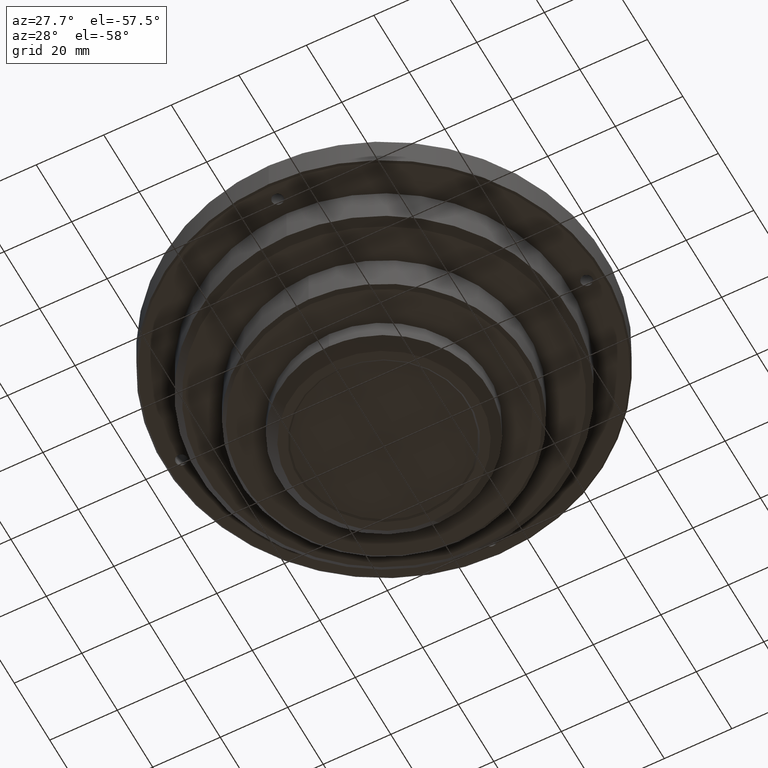
[diagram: clean part render]
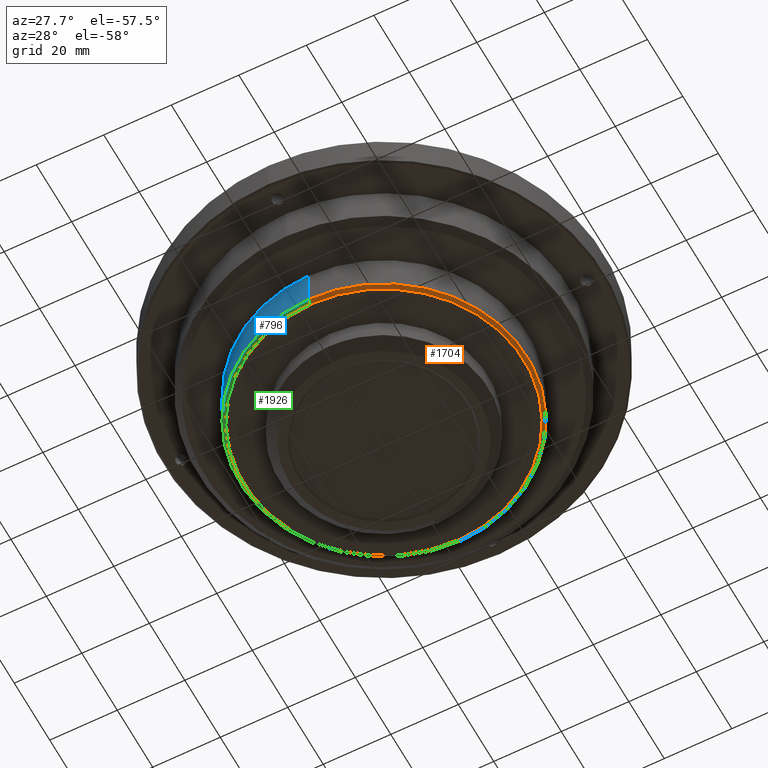
[diagram: same view with three faces highlighted in distinct colors, each labeled with its STEP entity id]
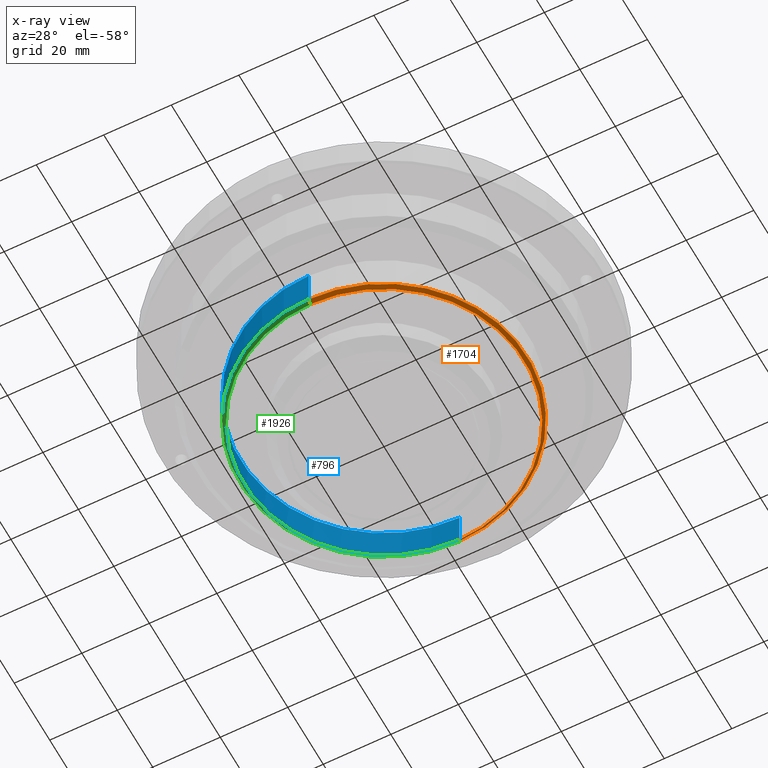
[diagram: x-ray of the same camera — body ghosted, the three highlighted faces saturated]
A machine part, auxiliary view with three faces highlighted in distinct colors.
The next image is the same camera in x-ray (body ghosted, the three faces saturated) — at least one of them is partly hidden behind the body in this view.
Their STEP definitions:

[orange] entity #1704 — the highlighted conical surface has half-angle 45 deg.
#1 = CARTESIAN_POINT ( 'NONE',  ( 41.14071750211581247, -11.01951182217534964, 29.99998973827607074 ) ) ;
#104 = VECTOR ( 'NONE', #173, 999.9999999999998863 ) ;
#134 = CARTESIAN_POINT ( 'NONE',  ( 32.01894723179170654, -28.08514368052436794, 29.99998973827607074 ) ) ;
#172 = CARTESIAN_POINT ( 'NONE',  ( 33.79208224593575949, 25.92457241444637361, 29.99998973827607429 ) ) ;
#173 = DIRECTION ( 'NONE',  ( 0.000000000000000000, -0.7071033239402958470, 0.7071102384158958198 ) ) ;
#207 = CARTESIAN_POINT ( 'NONE',  ( 0.000000000000000000, 42.50000513042999728, 29.99999486899999823 ) ) ;
#210 = VERTEX_POINT ( 'NONE', #550 ) ;
#231 = EDGE_CURVE ( 'NONE', #2260, #747, #530, .T. ) ;
#281 = CARTESIAN_POINT ( 'NONE',  ( 13.69416878669637860, 40.32936918214107180, 29.99998973827606363 ) ) ;
#324 = CARTESIAN_POINT ( 'NONE',  ( 5.563169552898205694, -42.22605146013142274, 29.99998973827606719 ) ) ;
#338 = CARTESIAN_POINT ( 'NONE',  ( 13.69416878669661664, -40.32936918214100075, 29.99998973827606719 ) ) ;
#360 = CARTESIAN_POINT ( 'NONE',  ( 42.22605146013139432, 5.563169552898257209, 29.99998973827606719 ) ) ;
#394 = EDGE_CURVE ( 'NONE', #747, #210, #2268, .T. ) ;
#397 = CARTESIAN_POINT ( 'NONE',  ( 0.000000000000000000, 41.50001001942999324, 28.99998997944999601 ) ) ;
#438 = CONICAL_SURFACE ( 'NONE', #1165, 42.00001014015000322, 0.7853984048428334086 ) ;
#484 = CARTESIAN_POINT ( 'NONE',  ( 18.83393081788149814, -38.20041004145392094, 29.99998973827607074 ) ) ;
#497 = CARTESIAN_POINT ( 'NONE',  ( 21.29890879380037205, 36.88285186345184741, 29.99998973827606363 ) ) ;
#530 = CIRCLE ( 'NONE', #1910, 41.50001001942999324 ) ;
#550 = CARTESIAN_POINT ( 'NONE',  ( 0.000000000000000000, -42.50000513042999728, 29.99999486899999823 ) ) ;
#656 = ORIENTED_EDGE ( 'NONE', *, *, #231, .F. ) ;
#673 = CARTESIAN_POINT ( 'NONE',  ( 0.000000000000000000, -41.50001001942999324, 28.99998997944999601 ) ) ;
#682 = CARTESIAN_POINT ( 'NONE',  ( 21.29890879380063495, -36.88285186345167688, 29.99998973827607074 ) ) ;
#723 = ORIENTED_EDGE ( 'NONE', *, *, #1201, .T. ) ;
#747 = VERTEX_POINT ( 'NONE', #1322 ) ;
#756 = CARTESIAN_POINT ( 'NONE',  ( 0.000000000000000000, 0.000000000000000000, 29.49998985872000290 ) ) ;
#768 = FACE_OUTER_BOUND ( 'NONE', #1321, .T. ) ;
#813 = DIRECTION ( 'NONE',  ( 0.000000000000000000, 0.000000000000000000, -1.000000000000000000 ) ) ;
#829 = CARTESIAN_POINT ( 'NONE',  ( 33.79208224593590160, -25.92457241444616756, 29.99998973827606719 ) ) ;
#851 = CARTESIAN_POINT ( 'NONE',  ( 28.08514368052452070, -32.01894723179157864, 29.99998973827607074 ) ) ;
#864 = CARTESIAN_POINT ( 'NONE',  ( 41.14071750211574141, 11.01951182217562319, 29.99998973827607074 ) ) ;
#873 = CARTESIAN_POINT ( 'NONE',  ( 38.20041004145389252, 18.83393081788156920, 29.99998973827607074 ) ) ;
#982 = CARTESIAN_POINT ( 'NONE',  ( 18.83393081788126366, 38.20041004145402752, 29.99998973827606363 ) ) ;
#1015 = CARTESIAN_POINT ( 'NONE',  ( 2.781619166956845746, -42.50001026115143787, 29.99998973827607429 ) ) ;
#1039 = CARTESIAN_POINT ( 'NONE',  ( 0.000000000000000000, -42.50000513042999728, 29.99999486899999823 ) ) ;
#1049 = CARTESIAN_POINT ( 'NONE',  ( 40.32936918214096522, 13.69416878669667703, 29.99998973827606719 ) ) ;
#1095 = DIRECTION ( 'NONE',  ( 0.000000000000000000, 1.000000000000000000, 0.000000000000000000 ) ) ;
#1149 = CARTESIAN_POINT ( 'NONE',  ( 0.000000000000000000, 0.000000000000000000, 28.99998997944999601 ) ) ;
#1165 = AXIS2_PLACEMENT_3D ( 'NONE', #756, #1285, #1095 ) ;
#1178 = CARTESIAN_POINT ( 'NONE',  ( 36.88285186345169109, 21.29890879380065982, 29.99998973827607429 ) ) ;
#1201 = EDGE_CURVE ( 'NONE', #2154, #210, #1682, .T. ) ;
#1208 = CARTESIAN_POINT ( 'NONE',  ( 36.88285186345180477, -21.29890879380043245, 29.99998973827606363 ) ) ;
#1285 = DIRECTION ( 'NONE',  ( 0.000000000000000000, 0.000000000000000000, 1.000000000000000000 ) ) ;
#1321 = EDGE_LOOP ( 'NONE', ( #723, #2089, #656, #2042 ) ) ;
#1322 = CARTESIAN_POINT ( 'NONE',  ( 0.000000000000000000, -41.50001001942999324, 28.99998997944999601 ) ) ;
#1326 = CARTESIAN_POINT ( 'NONE',  ( 0.000000000000000000, 41.50001001942999324, 28.99998997944999601 ) ) ;
#1330 = CARTESIAN_POINT ( 'NONE',  ( 2.781619166956577072, 42.50001026115145919, 29.99998973827607429 ) ) ;
#1376 = VECTOR ( 'NONE', #2205, 999.9999999999998863 ) ;
#1402 = CARTESIAN_POINT ( 'NONE',  ( 42.50001026115146630, -2.781619166956612599, 29.99998973827607074 ) ) ;
#1441 = EDGE_CURVE ( 'NONE', #2260, #2154, #2217, .T. ) ;
#1500 = CARTESIAN_POINT ( 'NONE',  ( 0.000000000000000000, 42.50000513042999728, 29.99999486899999823 ) ) ;
#1555 = CARTESIAN_POINT ( 'NONE',  ( 42.22605146013144406, -5.563169552897978321, 29.99998973827607074 ) ) ;
#1580 = CARTESIAN_POINT ( 'NONE',  ( 42.50001026115143077, 2.781619166956901701, 29.99998973827606719 ) ) ;
#1682 = B_SPLINE_CURVE_WITH_KNOTS ( 'NONE', 3,
 ( #1500, #1330, #2050, #1876, #281, #982, #497, #1774, #2121, #1726, #172, #1178, #873, #1049, #864, #360, #1580, #1402, #1555, #1, #2081, #1906, #1208, #829, #134, #851, #1931, #682, #484, #338, #1952, #324, #1015, #1039 ),
 .UNSPECIFIED., .F., .F.,
 ( 4, 2, 2, 2, 2, 2, 2, 2, 2, 2, 2, 2, 2, 2, 2, 2, 4 ),
 ( 0.000000000000000000, 0.06249999999999994449, 0.1249999999999998751, 0.1874999999999998057, 0.2499999999999997224, 0.3124999999999997224, 0.3749999999999997780, 0.4374999999999998335, 0.4999999999999998890, 0.5624999999999998890, 0.6250000000000000000, 0.6874999999999998890, 0.7499999999999998890, 0.8124999999999998890, 0.8750000000000000000, 0.9375000000000000000, 1.000000000000000000 ),
 .UNSPECIFIED. ) ;
#1704 = ADVANCED_FACE ( 'NONE', ( #768 ), #438, .T. ) ;
#1726 = CARTESIAN_POINT ( 'NONE',  ( 32.01894723179154312, 28.08514368052458465, 29.99998973827607074 ) ) ;
#1774 = CARTESIAN_POINT ( 'NONE',  ( 25.92457241444611071, 33.79208224593595133, 29.99998973827607429 ) ) ;
#1864 = DIRECTION ( 'NONE',  ( 0.000000000000000000, 1.000000000000000000, 0.000000000000000000 ) ) ;
#1876 = CARTESIAN_POINT ( 'NONE',  ( 11.01951182217530878, 41.14071750211579825, 29.99998973827606363 ) ) ;
#1906 = CARTESIAN_POINT ( 'NONE',  ( 38.20041004145401331, -18.83393081788129209, 29.99998973827606719 ) ) ;
#1910 = AXIS2_PLACEMENT_3D ( 'NONE', #1149, #813, #1864 ) ;
#1931 = CARTESIAN_POINT ( 'NONE',  ( 25.92457241444635230, -33.79208224593577370, 29.99998973827607074 ) ) ;
#1952 = CARTESIAN_POINT ( 'NONE',  ( 11.01951182217557168, -41.14071750211574852, 29.99998973827606719 ) ) ;
#2042 = ORIENTED_EDGE ( 'NONE', *, *, #1441, .T. ) ;
#2050 = CARTESIAN_POINT ( 'NONE',  ( 5.563169552897941017, 42.22605146013144406, 29.99998973827607074 ) ) ;
#2081 = CARTESIAN_POINT ( 'NONE',  ( 40.32936918214108601, -13.69416878669641235, 29.99998973827607429 ) ) ;
#2089 = ORIENTED_EDGE ( 'NONE', *, *, #394, .F. ) ;
#2121 = CARTESIAN_POINT ( 'NONE',  ( 28.08514368052430754, 32.01894723179176339, 29.99998973827607429 ) ) ;
#2154 = VERTEX_POINT ( 'NONE', #207 ) ;
#2205 = DIRECTION ( 'NONE',  ( 0.000000000000000000, 0.7071033239402958470, 0.7071102384158958198 ) ) ;
#2217 = LINE ( 'NONE', #1326, #1376 ) ;
#2260 = VERTEX_POINT ( 'NONE', #397 ) ;
#2268 = LINE ( 'NONE', #673, #104 ) ;

[blue] entity #796 — the highlighted cylindrical surface (partial cylindrical patch) has radius 42.5 mm, axis along (0, 0, -1).
#4 = ORIENTED_EDGE ( 'NONE', *, *, #1480, .F. ) ;
#15 = EDGE_LOOP ( 'NONE', ( #1928, #393, #4, #1170 ) ) ;
#74 = CARTESIAN_POINT ( 'NONE',  ( -13.69416548039279036, 40.32935944506657933, 29.99999486899999468 ) ) ;
#105 = CARTESIAN_POINT ( 'NONE',  ( -41.14070756915031524, 11.01950916163782068, 29.99999486899999823 ) ) ;
#128 = CARTESIAN_POINT ( 'NONE',  ( 0.000000000000000000, -42.50000513042999728, 29.99999486899999823 ) ) ;
#199 = VERTEX_POINT ( 'NONE', #1438 ) ;
#207 = CARTESIAN_POINT ( 'NONE',  ( 0.000000000000000000, 42.50000513042999728, 29.99999486899999823 ) ) ;
#210 = VERTEX_POINT ( 'NONE', #550 ) ;
#266 = CARTESIAN_POINT ( 'NONE',  ( -11.01950916163777450, -41.14070756915033655, 29.99999486899999823 ) ) ;
#293 = CARTESIAN_POINT ( 'NONE',  ( -40.32935944506655090, 13.69416548039291470, 29.99999486900000178 ) ) ;
#378 = EDGE_CURVE ( 'NONE', #2154, #1003, #662, .T. ) ;
#393 = ORIENTED_EDGE ( 'NONE', *, *, #2010, .T. ) ;
#434 = CARTESIAN_POINT ( 'NONE',  ( -11.01950916163768923, 41.14070756915035076, 29.99999486899999113 ) ) ;
#446 = CARTESIAN_POINT ( 'NONE',  ( -33.79207408721608630, -25.92456615524860908, 29.99999486899999823 ) ) ;
#457 = CARTESIAN_POINT ( 'NONE',  ( -38.20040081839285762, -18.83392627063975056, 29.99999486899999823 ) ) ;
#459 = CYLINDRICAL_SURFACE ( 'NONE', #2172, 42.50000000000000000 ) ;
#466 = CARTESIAN_POINT ( 'NONE',  ( -18.83392627063970437, 38.20040081839285762, 29.99999486899999468 ) ) ;
#468 = CARTESIAN_POINT ( 'NONE',  ( 0.000000000000000000, 0.000000000000000000, 79.27499999999999147 ) ) ;
#491 = LINE ( 'NONE', #128, #775 ) ;
#509 = CARTESIAN_POINT ( 'NONE',  ( 0.000000000000000000, 42.50000513042999728, 29.99999486899999823 ) ) ;
#550 = CARTESIAN_POINT ( 'NONE',  ( 0.000000000000000000, -42.50000513042999728, 29.99999486899999823 ) ) ;
#609 = CARTESIAN_POINT ( 'NONE',  ( -2.781618495365875798, 42.49999999999999289, 29.99999486899999468 ) ) ;
#621 = CARTESIAN_POINT ( 'NONE',  ( -5.563168209733053260, 42.22604126512427314, 29.99999486899999823 ) ) ;
#632 = CARTESIAN_POINT ( 'NONE',  ( -41.14070756915035076, -11.01950916163773897, 29.99999486899999823 ) ) ;
#643 = CARTESIAN_POINT ( 'NONE',  ( 0.000000000000000000, -42.50000513042999728, 29.99999486899999823 ) ) ;
#662 = LINE ( 'NONE', #509, #2296 ) ;
#775 = VECTOR ( 'NONE', #2258, 1000.000000000000227 ) ;
#778 = CARTESIAN_POINT ( 'NONE',  ( -2.781618495365970833, -42.50000000000002132, 29.99999486900001600 ) ) ;
#791 = CARTESIAN_POINT ( 'NONE',  ( -21.29890365141758579, -36.88284295850026950, 29.99999486900000178 ) ) ;
#796 = ADVANCED_FACE ( 'NONE', ( #2226 ), #459, .T. ) ;
#959 = CARTESIAN_POINT ( 'NONE',  ( -42.50000000000002132, -2.781618495365925536, 29.99999486899999823 ) ) ;
#983 = CARTESIAN_POINT ( 'NONE',  ( -25.92456615524855934, 33.79207408721612182, 29.99999486899999468 ) ) ;
#1003 = VERTEX_POINT ( 'NONE', #2026 ) ;
#1116 = CARTESIAN_POINT ( 'NONE',  ( -28.08513689968102156, 32.01893950117551668, 29.99999486899999823 ) ) ;
#1122 = CARTESIAN_POINT ( 'NONE',  ( 0.000000000000000000, 0.000000000000000000, 41.49999658835000105 ) ) ;
#1148 = CARTESIAN_POINT ( 'NONE',  ( -28.08513689968109617, -32.01893950117544563, 29.99999486899999468 ) ) ;
#1152 = DIRECTION ( 'NONE',  ( 0.000000000000000000, 0.000000000000000000, -1.000000000000000000 ) ) ;
#1160 = CARTESIAN_POINT ( 'NONE',  ( -18.83392627063978608, -38.20040081839282209, 29.99999486899999823 ) ) ;
#1163 = DIRECTION ( 'NONE',  ( 0.000000000000000000, -1.000000000000000000, 0.000000000000000000 ) ) ;
#1170 = ORIENTED_EDGE ( 'NONE', *, *, #378, .F. ) ;
#1295 = CARTESIAN_POINT ( 'NONE',  ( -36.88284295850029793, -21.29890365141755026, 29.99999486900000534 ) ) ;
#1331 = CARTESIAN_POINT ( 'NONE',  ( -36.88284295850024819, 21.29890365141761777, 29.99999486899999468 ) ) ;
#1393 = DIRECTION ( 'NONE',  ( 0.000000000000000000, -4.461245354495007050E-07, 0.9999999999999004130 ) ) ;
#1438 = CARTESIAN_POINT ( 'NONE',  ( 0.000000000000000000, -42.50000000000000000, 41.49999658835000105 ) ) ;
#1467 = B_SPLINE_CURVE_WITH_KNOTS ( 'NONE', 3,
 ( #1686, #609, #621, #434, #74, #466, #2060, #983, #1116, #1697, #1660, #1331, #1476, #293, #105, #1501, #1514, #959, #2223, #632, #2233, #457, #1295, #446, #2027, #1148, #1672, #791, #1160, #2016, #266, #1490, #778, #643 ),
 .UNSPECIFIED., .F., .F.,
 ( 4, 2, 2, 2, 2, 2, 2, 2, 2, 2, 2, 2, 2, 2, 2, 2, 4 ),
 ( 0.000000000000000000, 0.06250000000000008327, 0.1250000000000001388, 0.1875000000000002220, 0.2500000000000002776, 0.3125000000000002776, 0.3750000000000003331, 0.4375000000000003331, 0.5000000000000003331, 0.5625000000000004441, 0.6250000000000004441, 0.6875000000000005551, 0.7500000000000006661, 0.8125000000000005551, 0.8750000000000003331, 0.9375000000000002220, 1.000000000000000000 ),
 .UNSPECIFIED. ) ;
#1476 = CARTESIAN_POINT ( 'NONE',  ( -38.20040081839280077, 18.83392627063982872, 29.99999486899999468 ) ) ;
#1480 = EDGE_CURVE ( 'NONE', #1003, #199, #1942, .T. ) ;
#1490 = CARTESIAN_POINT ( 'NONE',  ( -5.563168209733133196, -42.22604126512426603, 29.99999486900000889 ) ) ;
#1501 = CARTESIAN_POINT ( 'NONE',  ( -42.22604126512424472, 5.563168209733186487, 29.99999486900000178 ) ) ;
#1509 = DIRECTION ( 'NONE',  ( 0.000000000000000000, 0.000000000000000000, 1.000000000000000000 ) ) ;
#1514 = CARTESIAN_POINT ( 'NONE',  ( -42.50000000000000000, 2.781618495366009469, 29.99999486899999823 ) ) ;
#1660 = CARTESIAN_POINT ( 'NONE',  ( -33.79207408721603656, 25.92456615524867303, 29.99999486899999823 ) ) ;
#1672 = CARTESIAN_POINT ( 'NONE',  ( -25.92456615524863395, -33.79207408721605788, 29.99999486899999113 ) ) ;
#1677 = AXIS2_PLACEMENT_3D ( 'NONE', #1122, #1509, #2230 ) ;
#1686 = CARTESIAN_POINT ( 'NONE',  ( 0.000000000000000000, 42.50000513042999728, 29.99999486899999823 ) ) ;
#1697 = CARTESIAN_POINT ( 'NONE',  ( -32.01893950117543142, 28.08513689968113525, 29.99999486900000178 ) ) ;
#1822 = EDGE_CURVE ( 'NONE', #2154, #210, #1467, .T. ) ;
#1928 = ORIENTED_EDGE ( 'NONE', *, *, #1822, .T. ) ;
#1942 = CIRCLE ( 'NONE', #1677, 42.50000000000000000 ) ;
#2010 = EDGE_CURVE ( 'NONE', #210, #199, #491, .T. ) ;
#2016 = CARTESIAN_POINT ( 'NONE',  ( -13.69416548039287740, -40.32935944506654380, 29.99999486899999468 ) ) ;
#2026 = CARTESIAN_POINT ( 'NONE',  ( 0.000000000000000000, 42.50000000000000000, 41.49999658835000105 ) ) ;
#2027 = CARTESIAN_POINT ( 'NONE',  ( -32.01893950117549537, -28.08513689968105709, 29.99999486899999823 ) ) ;
#2060 = CARTESIAN_POINT ( 'NONE',  ( -21.29890365141750408, 36.88284295850033345, 29.99999486900000534 ) ) ;
#2154 = VERTEX_POINT ( 'NONE', #207 ) ;
#2172 = AXIS2_PLACEMENT_3D ( 'NONE', #468, #1152, #1163 ) ;
#2223 = CARTESIAN_POINT ( 'NONE',  ( -42.22604126512427314, -5.563168209733093228, 29.99999486900000178 ) ) ;
#2226 = FACE_OUTER_BOUND ( 'NONE', #15, .T. ) ;
#2230 = DIRECTION ( 'NONE',  ( 0.000000000000000000, 1.000000000000000000, 0.000000000000000000 ) ) ;
#2233 = CARTESIAN_POINT ( 'NONE',  ( -40.32935944506657933, -13.69416548039282766, 29.99999486900000178 ) ) ;
#2258 = DIRECTION ( 'NONE',  ( 0.000000000000000000, 4.461245354495007050E-07, 0.9999999999999004130 ) ) ;
#2296 = VECTOR ( 'NONE', #1393, 1000.000000000000227 ) ;

[green] entity #1926 — the highlighted conical surface has half-angle 45 deg.
#74 = CARTESIAN_POINT ( 'NONE',  ( -13.69416548039279036, 40.32935944506657933, 29.99999486899999468 ) ) ;
#104 = VECTOR ( 'NONE', #173, 999.9999999999998863 ) ;
#105 = CARTESIAN_POINT ( 'NONE',  ( -41.14070756915031524, 11.01950916163782068, 29.99999486899999823 ) ) ;
#173 = DIRECTION ( 'NONE',  ( 0.000000000000000000, -0.7071033239402958470, 0.7071102384158958198 ) ) ;
#207 = CARTESIAN_POINT ( 'NONE',  ( 0.000000000000000000, 42.50000513042999728, 29.99999486899999823 ) ) ;
#210 = VERTEX_POINT ( 'NONE', #550 ) ;
#266 = CARTESIAN_POINT ( 'NONE',  ( -11.01950916163777450, -41.14070756915033655, 29.99999486899999823 ) ) ;
#293 = CARTESIAN_POINT ( 'NONE',  ( -40.32935944506655090, 13.69416548039291470, 29.99999486900000178 ) ) ;
#302 = CARTESIAN_POINT ( 'NONE',  ( 0.000000000000000000, 0.000000000000000000, 29.49998985872000290 ) ) ;
#394 = EDGE_CURVE ( 'NONE', #747, #210, #2268, .T. ) ;
#397 = CARTESIAN_POINT ( 'NONE',  ( 0.000000000000000000, 41.50001001942999324, 28.99998997944999601 ) ) ;
#434 = CARTESIAN_POINT ( 'NONE',  ( -11.01950916163768923, 41.14070756915035076, 29.99999486899999113 ) ) ;
#446 = CARTESIAN_POINT ( 'NONE',  ( -33.79207408721608630, -25.92456615524860908, 29.99999486899999823 ) ) ;
#457 = CARTESIAN_POINT ( 'NONE',  ( -38.20040081839285762, -18.83392627063975056, 29.99999486899999823 ) ) ;
#466 = CARTESIAN_POINT ( 'NONE',  ( -18.83392627063970437, 38.20040081839285762, 29.99999486899999468 ) ) ;
#498 = FACE_OUTER_BOUND ( 'NONE', #1445, .T. ) ;
#550 = CARTESIAN_POINT ( 'NONE',  ( 0.000000000000000000, -42.50000513042999728, 29.99999486899999823 ) ) ;
#568 = EDGE_CURVE ( 'NONE', #2260, #747, #707, .T. ) ;
#602 = AXIS2_PLACEMENT_3D ( 'NONE', #1648, #1967, #766 ) ;
#609 = CARTESIAN_POINT ( 'NONE',  ( -2.781618495365875798, 42.49999999999999289, 29.99999486899999468 ) ) ;
#621 = CARTESIAN_POINT ( 'NONE',  ( -5.563168209733053260, 42.22604126512427314, 29.99999486899999823 ) ) ;
#632 = CARTESIAN_POINT ( 'NONE',  ( -41.14070756915035076, -11.01950916163773897, 29.99999486899999823 ) ) ;
#643 = CARTESIAN_POINT ( 'NONE',  ( 0.000000000000000000, -42.50000513042999728, 29.99999486899999823 ) ) ;
#673 = CARTESIAN_POINT ( 'NONE',  ( 0.000000000000000000, -41.50001001942999324, 28.99998997944999601 ) ) ;
#707 = CIRCLE ( 'NONE', #602, 41.50001001942999324 ) ;
#747 = VERTEX_POINT ( 'NONE', #1322 ) ;
#766 = DIRECTION ( 'NONE',  ( 0.000000000000000000, 1.000000000000000000, 0.000000000000000000 ) ) ;
#778 = CARTESIAN_POINT ( 'NONE',  ( -2.781618495365970833, -42.50000000000002132, 29.99999486900001600 ) ) ;
#780 = ORIENTED_EDGE ( 'NONE', *, *, #568, .T. ) ;
#791 = CARTESIAN_POINT ( 'NONE',  ( -21.29890365141758579, -36.88284295850026950, 29.99999486900000178 ) ) ;
#959 = CARTESIAN_POINT ( 'NONE',  ( -42.50000000000002132, -2.781618495365925536, 29.99999486899999823 ) ) ;
#983 = CARTESIAN_POINT ( 'NONE',  ( -25.92456615524855934, 33.79207408721612182, 29.99999486899999468 ) ) ;
#1116 = CARTESIAN_POINT ( 'NONE',  ( -28.08513689968102156, 32.01893950117551668, 29.99999486899999823 ) ) ;
#1148 = CARTESIAN_POINT ( 'NONE',  ( -28.08513689968109617, -32.01893950117544563, 29.99999486899999468 ) ) ;
#1160 = CARTESIAN_POINT ( 'NONE',  ( -18.83392627063978608, -38.20040081839282209, 29.99999486899999823 ) ) ;
#1179 = DIRECTION ( 'NONE',  ( 0.000000000000000000, 0.000000000000000000, 1.000000000000000000 ) ) ;
#1256 = ORIENTED_EDGE ( 'NONE', *, *, #1441, .F. ) ;
#1295 = CARTESIAN_POINT ( 'NONE',  ( -36.88284295850029793, -21.29890365141755026, 29.99999486900000534 ) ) ;
#1322 = CARTESIAN_POINT ( 'NONE',  ( 0.000000000000000000, -41.50001001942999324, 28.99998997944999601 ) ) ;
#1326 = CARTESIAN_POINT ( 'NONE',  ( 0.000000000000000000, 41.50001001942999324, 28.99998997944999601 ) ) ;
#1331 = CARTESIAN_POINT ( 'NONE',  ( -36.88284295850024819, 21.29890365141761777, 29.99999486899999468 ) ) ;
#1376 = VECTOR ( 'NONE', #2205, 999.9999999999998863 ) ;
#1441 = EDGE_CURVE ( 'NONE', #2260, #2154, #2217, .T. ) ;
#1445 = EDGE_LOOP ( 'NONE', ( #780, #1950, #2065, #1256 ) ) ;
#1467 = B_SPLINE_CURVE_WITH_KNOTS ( 'NONE', 3,
 ( #1686, #609, #621, #434, #74, #466, #2060, #983, #1116, #1697, #1660, #1331, #1476, #293, #105, #1501, #1514, #959, #2223, #632, #2233, #457, #1295, #446, #2027, #1148, #1672, #791, #1160, #2016, #266, #1490, #778, #643 ),
 .UNSPECIFIED., .F., .F.,
 ( 4, 2, 2, 2, 2, 2, 2, 2, 2, 2, 2, 2, 2, 2, 2, 2, 4 ),
 ( 0.000000000000000000, 0.06250000000000008327, 0.1250000000000001388, 0.1875000000000002220, 0.2500000000000002776, 0.3125000000000002776, 0.3750000000000003331, 0.4375000000000003331, 0.5000000000000003331, 0.5625000000000004441, 0.6250000000000004441, 0.6875000000000005551, 0.7500000000000006661, 0.8125000000000005551, 0.8750000000000003331, 0.9375000000000002220, 1.000000000000000000 ),
 .UNSPECIFIED. ) ;
#1476 = CARTESIAN_POINT ( 'NONE',  ( -38.20040081839280077, 18.83392627063982872, 29.99999486899999468 ) ) ;
#1490 = CARTESIAN_POINT ( 'NONE',  ( -5.563168209733133196, -42.22604126512426603, 29.99999486900000889 ) ) ;
#1501 = CARTESIAN_POINT ( 'NONE',  ( -42.22604126512424472, 5.563168209733186487, 29.99999486900000178 ) ) ;
#1514 = CARTESIAN_POINT ( 'NONE',  ( -42.50000000000000000, 2.781618495366009469, 29.99999486899999823 ) ) ;
#1581 = CONICAL_SURFACE ( 'NONE', #1930, 42.00001014015000322, 0.7853984048428334086 ) ;
#1648 = CARTESIAN_POINT ( 'NONE',  ( 0.000000000000000000, 0.000000000000000000, 28.99998997944999601 ) ) ;
#1660 = CARTESIAN_POINT ( 'NONE',  ( -33.79207408721603656, 25.92456615524867303, 29.99999486899999823 ) ) ;
#1672 = CARTESIAN_POINT ( 'NONE',  ( -25.92456615524863395, -33.79207408721605788, 29.99999486899999113 ) ) ;
#1686 = CARTESIAN_POINT ( 'NONE',  ( 0.000000000000000000, 42.50000513042999728, 29.99999486899999823 ) ) ;
#1697 = CARTESIAN_POINT ( 'NONE',  ( -32.01893950117543142, 28.08513689968113525, 29.99999486900000178 ) ) ;
#1822 = EDGE_CURVE ( 'NONE', #2154, #210, #1467, .T. ) ;
#1920 = DIRECTION ( 'NONE',  ( 0.000000000000000000, 1.000000000000000000, 0.000000000000000000 ) ) ;
#1926 = ADVANCED_FACE ( 'NONE', ( #498 ), #1581, .T. ) ;
#1930 = AXIS2_PLACEMENT_3D ( 'NONE', #302, #1179, #1920 ) ;
#1950 = ORIENTED_EDGE ( 'NONE', *, *, #394, .T. ) ;
#1967 = DIRECTION ( 'NONE',  ( 0.000000000000000000, 0.000000000000000000, 1.000000000000000000 ) ) ;
#2016 = CARTESIAN_POINT ( 'NONE',  ( -13.69416548039287740, -40.32935944506654380, 29.99999486899999468 ) ) ;
#2027 = CARTESIAN_POINT ( 'NONE',  ( -32.01893950117549537, -28.08513689968105709, 29.99999486899999823 ) ) ;
#2060 = CARTESIAN_POINT ( 'NONE',  ( -21.29890365141750408, 36.88284295850033345, 29.99999486900000534 ) ) ;
#2065 = ORIENTED_EDGE ( 'NONE', *, *, #1822, .F. ) ;
#2154 = VERTEX_POINT ( 'NONE', #207 ) ;
#2205 = DIRECTION ( 'NONE',  ( 0.000000000000000000, 0.7071033239402958470, 0.7071102384158958198 ) ) ;
#2217 = LINE ( 'NONE', #1326, #1376 ) ;
#2223 = CARTESIAN_POINT ( 'NONE',  ( -42.22604126512427314, -5.563168209733093228, 29.99999486900000178 ) ) ;
#2233 = CARTESIAN_POINT ( 'NONE',  ( -40.32935944506657933, -13.69416548039282766, 29.99999486900000178 ) ) ;
#2260 = VERTEX_POINT ( 'NONE', #397 ) ;
#2268 = LINE ( 'NONE', #673, #104 ) ;